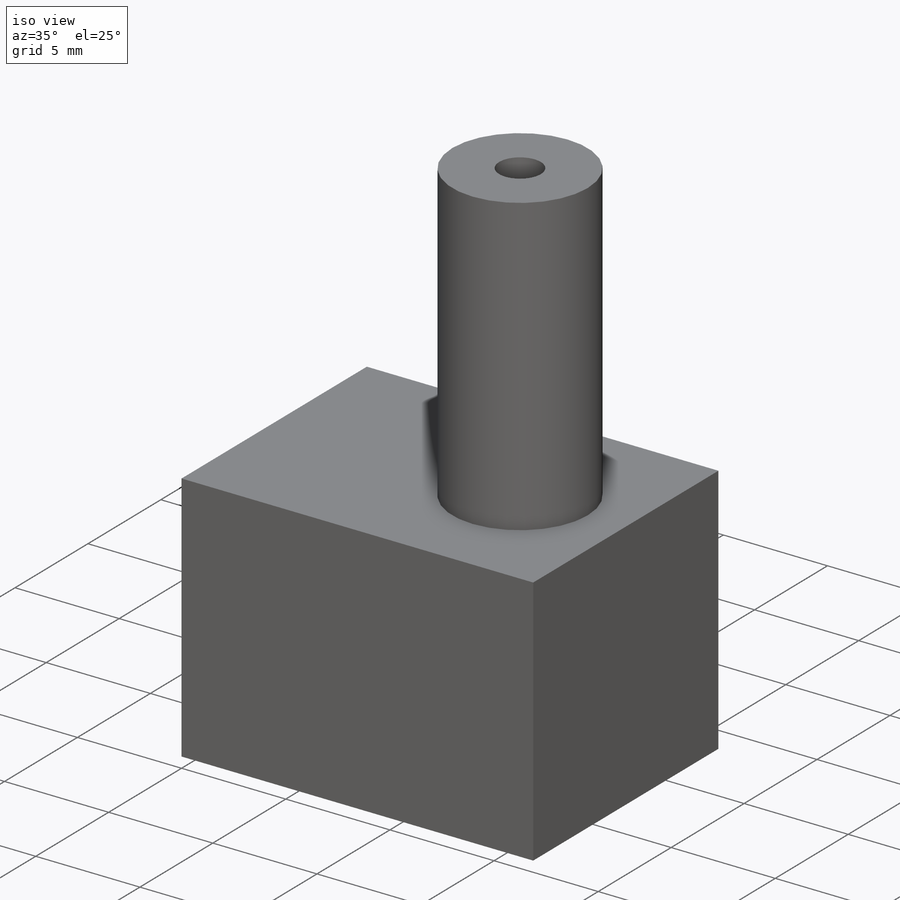
[diagram: iso view]
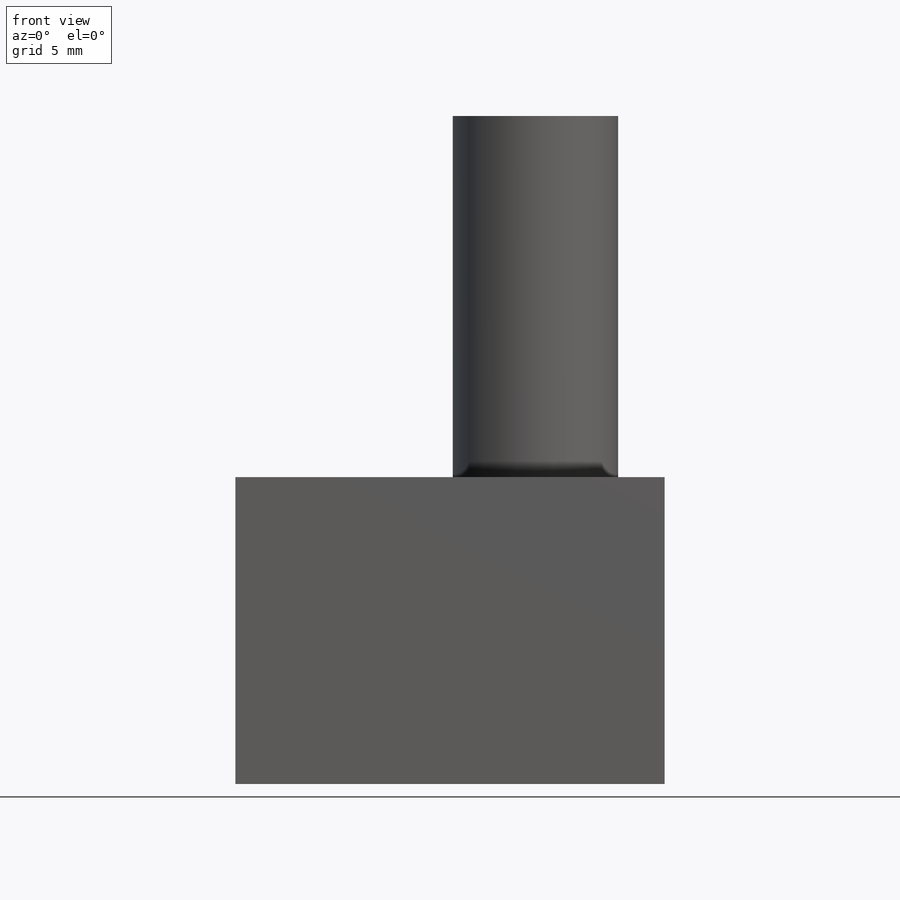
[diagram: front view]
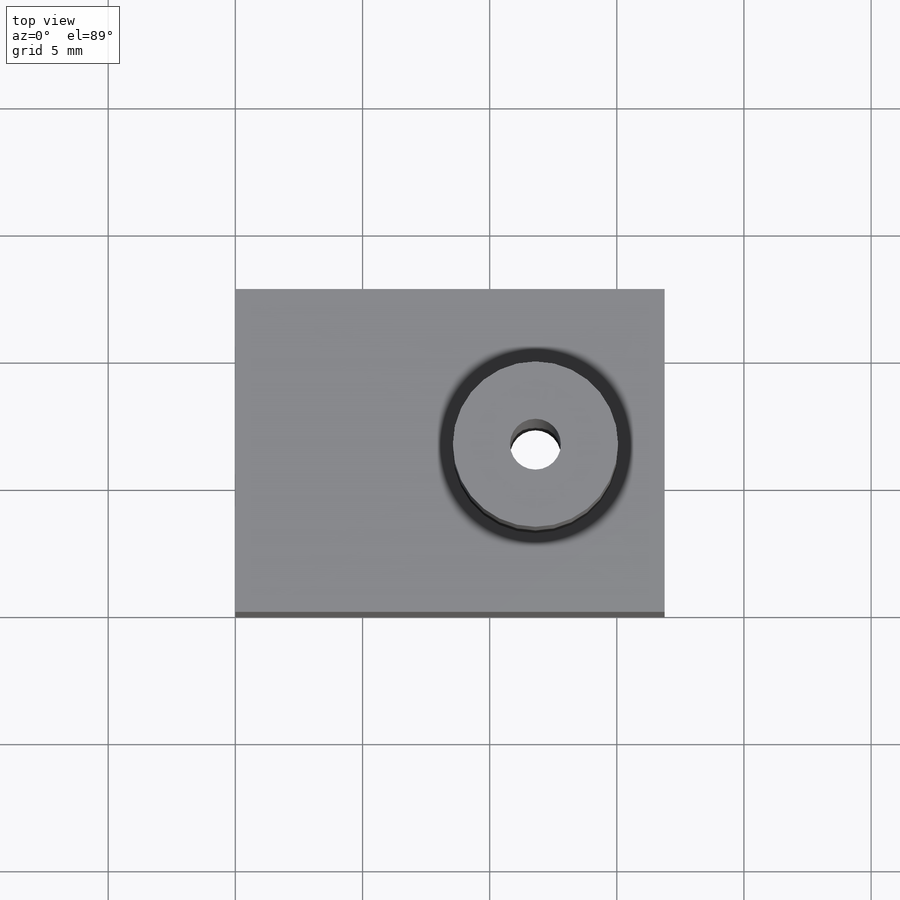
[diagram: top view]
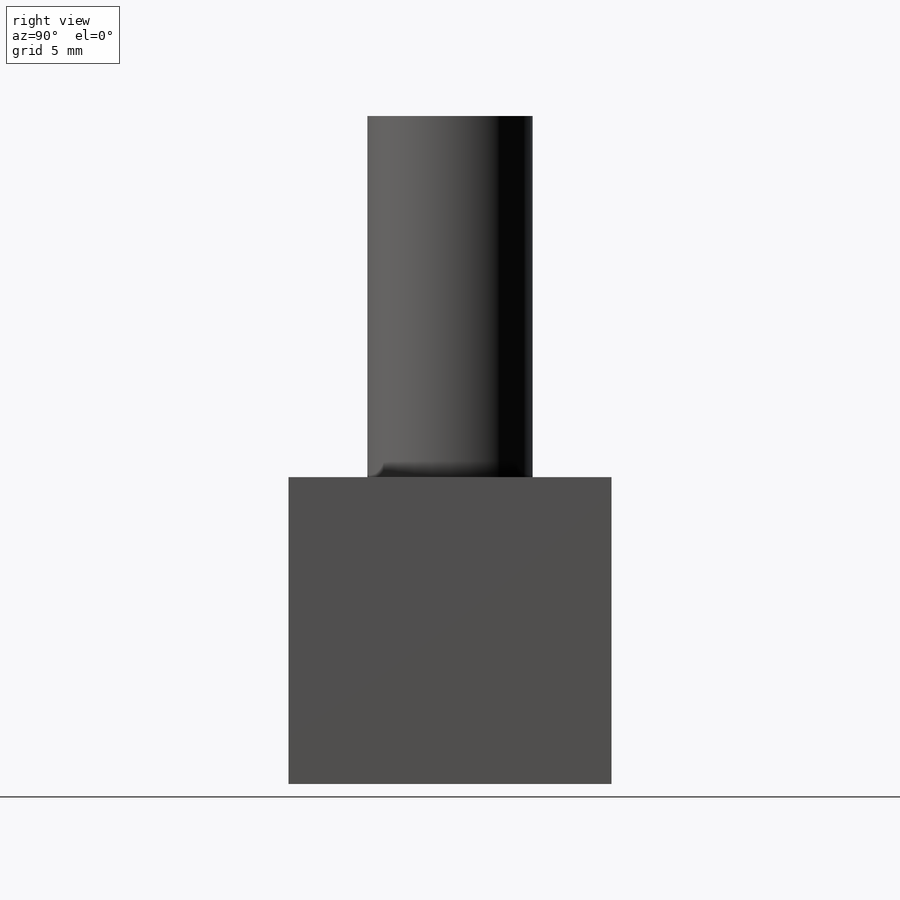
[diagram: right view]
SOLIDWORKS PART (.sldprt)
format: sldprt  version: not decoded by parser v0  size: 139,776 bytes
history: native  units: mm
features: sketch x3, extrude x2, material x1, cut_extrude x1 (+12 scaffold rows collapsed)
feature tree (19):
  scaffold x12  (default folders/planes/origin — collapsed)
  material  "Brass"
  sketch  "Sketch1"  dims[c1.D1=~20.982385mm c1.D2=~34.77081mm c2.D1=12.7mm c2.D2=16.88mm]
  extrude  "Boss-Extrude1"  Depth=12.065mm
  sketch  "Sketch3"  dims[D1=6.5mm D2=5.08mm D3=6.35mm]
  extrude  "Boss-Extrude2"  Depth=14.2mm
  sketch  "Sketch4"  dims[D1=2.0mm]
  cut_extrude  "Cut-Extrude1"  [1 undecoded]
decode coverage: 5 of 6 modeling features carry decoded parameters
note: ~ marks probable driven/reference dimensions
note: 1 parameter value undecoded
note: suppression state not decoded; provenance and decode notes live in map.json
